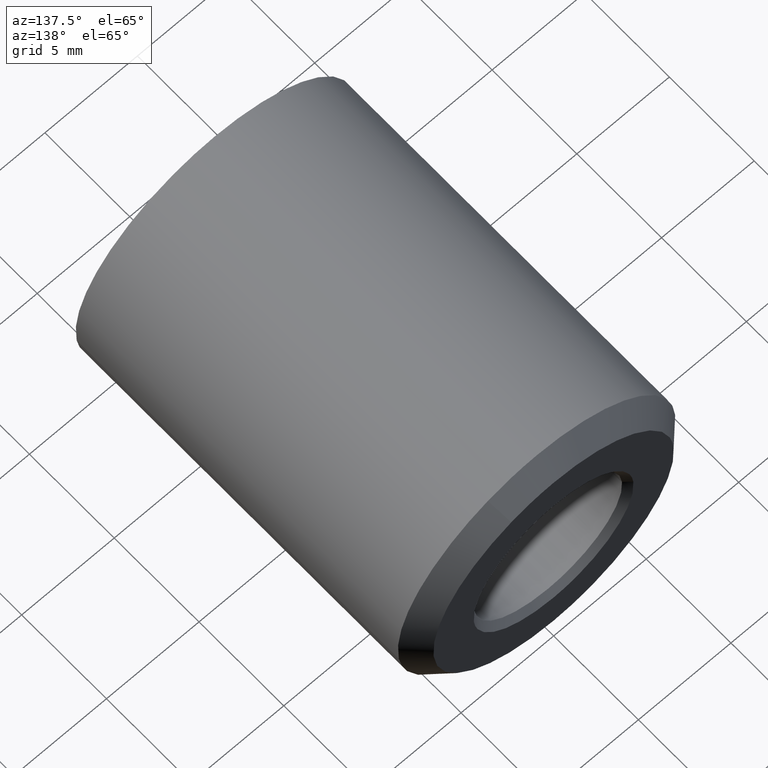
[diagram: clean part render]
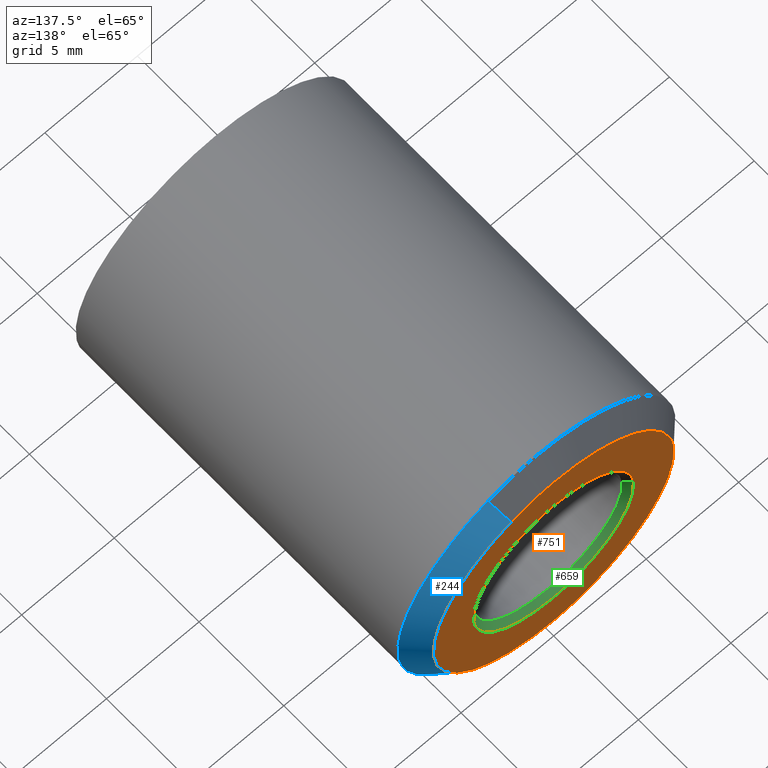
[diagram: same view with three faces highlighted in distinct colors, each labeled with its STEP entity id]
A machine part, auxiliary view with three faces highlighted in distinct colors.
Their STEP definitions:

[orange] entity #751 — the highlighted face is a freeform B-spline surface patch.
#79=CARTESIAN_POINT('',(2.285516833559040,19.999999999998650,6.084933262044523));
#80=VERTEX_POINT('',#79);
#86=CARTESIAN_POINT('',(0.0,20.0,6.500000000000000));
#87=VERTEX_POINT('',#86);
#88=CARTESIAN_POINT('',(2.285516833559040,19.999999999998646,6.084933262044523));
#89=CARTESIAN_POINT('',(1.180448009448671,20.0,6.500000000000001));
#90=CARTESIAN_POINT('',(0.0,20.0,6.500000000000000));
#98=(BOUNDED_CURVE()B_SPLINE_CURVE(2,(#88,#89,#90),.UNSPECIFIED.,.F.,.U.)B_SPLINE_CURVE_WITH_KNOTS((3,3),(0.440284170898217,0.500000000000000),.UNSPECIFIED.)CURVE()GEOMETRIC_REPRESENTATION_ITEM()RATIONAL_B_SPLINE_CURVE((0.893499554634918,0.930038554401058,1.0))REPRESENTATION_ITEM(''));
#99=EDGE_CURVE('',#80,#87,#98,.T.);
#101=CARTESIAN_POINT('',(-6.487876189743154,19.999999999998099,0.396815506990952));
#102=VERTEX_POINT('',#101);
#103=CARTESIAN_POINT('',(0.0,20.0,6.500000000000000));
#104=CARTESIAN_POINT('',(-6.114589434860092,19.999999999999996,6.500000000000000));
#105=CARTESIAN_POINT('',(-6.487876189743154,19.999999999998103,0.396815506990952));
#113=(BOUNDED_CURVE()B_SPLINE_CURVE(2,(#103,#104,#105),.UNSPECIFIED.,.F.,.U.)B_SPLINE_CURVE_WITH_KNOTS((3,3),(0.500000000000000,0.739332962241210),.UNSPECIFIED.)CURVE()GEOMETRIC_REPRESENTATION_ITEM()RATIONAL_B_SPLINE_CURVE((1.0,0.719603993284054,0.976072041671576))REPRESENTATION_ITEM(''));
#114=EDGE_CURVE('',#87,#102,#113,.T.);
#209=CARTESIAN_POINT('',(0.0,20.0,-6.500000000000000));
#210=VERTEX_POINT('',#209);
#211=CARTESIAN_POINT('',(-6.487876189743154,19.999999999998099,0.396815506990952));
#212=CARTESIAN_POINT('',(-6.500000000000000,20.000000000000004,0.198592961455134));
#213=CARTESIAN_POINT('',(-6.500000000000000,20.0,-1.836910E-016));
#214=CARTESIAN_POINT('',(-6.500000000000000,20.0,-6.500000000000000));
#215=CARTESIAN_POINT('',(0.0,20.0,-6.500000000000000));
#223=(BOUNDED_CURVE()B_SPLINE_CURVE(2,(#211,#212,#213,#214,#215),.UNSPECIFIED.,.F.,.U.)B_SPLINE_CURVE_WITH_KNOTS((3,2,3),(0.739332962241209,0.750000000000000,1.0),.UNSPECIFIED.)CURVE()GEOMETRIC_REPRESENTATION_ITEM()RATIONAL_B_SPLINE_CURVE((0.976072041671575,0.987502787902493,1.0,0.707106781186547,1.0))REPRESENTATION_ITEM(''));
#224=EDGE_CURVE('',#102,#210,#223,.T.);
#226=CARTESIAN_POINT('',(0.0,20.0,-6.500000000000000));
#227=CARTESIAN_POINT('',(6.500000000000000,20.0,-6.500000000000000));
#228=CARTESIAN_POINT('',(6.500000000000000,20.0,-1.836910E-016));
#229=CARTESIAN_POINT('',(6.500000000000001,20.000000000000007,4.501962371992629));
#230=CARTESIAN_POINT('',(2.285516833559040,19.999999999998654,6.084933262044523));
#238=(BOUNDED_CURVE()B_SPLINE_CURVE(2,(#226,#227,#228,#229,#230),.UNSPECIFIED.,.F.,.U.)B_SPLINE_CURVE_WITH_KNOTS((3,2,3),(0.0,0.250000000000000,0.440284170898216),.UNSPECIFIED.)CURVE()GEOMETRIC_REPRESENTATION_ITEM()RATIONAL_B_SPLINE_CURVE((1.0,0.707106781186547,1.0,0.777068226785489,0.893499554634918))REPRESENTATION_ITEM(''));
#239=EDGE_CURVE('',#210,#80,#238,.T.);
#611=CARTESIAN_POINT('',(4.310172092395723,20.000000000001378,-0.339217900389955));
#612=VERTEX_POINT('',#611);
#618=CARTESIAN_POINT('',(0.0,20.0,-4.323500000000000));
#619=VERTEX_POINT('',#618);
#620=CARTESIAN_POINT('',(0.0,20.0,-4.323500000000000));
#621=CARTESIAN_POINT('',(3.996602290664712,20.0,-4.323500000000000));
#622=CARTESIAN_POINT('',(4.310172092395723,20.000000000001378,-0.339217900389955));
#630=(BOUNDED_CURVE()B_SPLINE_CURVE(2,(#620,#621,#622),.UNSPECIFIED.,.F.,.U.)B_SPLINE_CURVE_WITH_KNOTS((3,3),(0.0,0.236331300631931),.UNSPECIFIED.)CURVE()GEOMETRIC_REPRESENTATION_ITEM()RATIONAL_B_SPLINE_CURVE((1.0,0.723120658606176,0.969723356170071))REPRESENTATION_ITEM(''));
#631=EDGE_CURVE('',#619,#612,#630,.T.);
#633=CARTESIAN_POINT('',(-4.310172092395723,20.000000000001378,0.339217900389954));
#634=VERTEX_POINT('',#633);
#635=CARTESIAN_POINT('',(-4.310172092395723,20.000000000001378,0.339217900389955));
#636=CARTESIAN_POINT('',(-4.323500000000000,19.999999999999996,0.169870777658216));
#637=CARTESIAN_POINT('',(-4.323500000000000,20.0,-1.836910E-016));
#638=CARTESIAN_POINT('',(-4.323500000000001,19.999999999999996,-4.323500000000001));
#639=CARTESIAN_POINT('',(0.0,20.0,-4.323500000000000));
#647=(BOUNDED_CURVE()B_SPLINE_CURVE(2,(#635,#636,#637,#638,#639),.UNSPECIFIED.,.F.,.U.)B_SPLINE_CURVE_WITH_KNOTS((3,2,3),(0.736331300631931,0.750000000000000,1.0),.UNSPECIFIED.)CURVE()GEOMETRIC_REPRESENTATION_ITEM()RATIONAL_B_SPLINE_CURVE((0.969723356170071,0.983986122580372,1.0,0.707106781186548,1.0))REPRESENTATION_ITEM(''));
#648=EDGE_CURVE('',#634,#619,#647,.T.);
#682=CARTESIAN_POINT('',(0.0,20.0,4.323500000000000));
#683=VERTEX_POINT('',#682);
#684=CARTESIAN_POINT('',(0.0,20.0,4.323500000000000));
#685=CARTESIAN_POINT('',(-3.996602290664713,20.000000000000004,4.323499999999999));
#686=CARTESIAN_POINT('',(-4.310172092395723,20.000000000001375,0.339217900389955));
#694=(BOUNDED_CURVE()B_SPLINE_CURVE(2,(#684,#685,#686),.UNSPECIFIED.,.F.,.U.)B_SPLINE_CURVE_WITH_KNOTS((3,3),(0.500000000000000,0.736331300631931),.UNSPECIFIED.)CURVE()GEOMETRIC_REPRESENTATION_ITEM()RATIONAL_B_SPLINE_CURVE((1.0,0.723120658606176,0.969723356170071))REPRESENTATION_ITEM(''));
#695=EDGE_CURVE('',#683,#634,#694,.T.);
#697=CARTESIAN_POINT('',(4.310172092395723,20.000000000001378,-0.339217900389955));
#698=CARTESIAN_POINT('',(4.323500000000000,19.999999999999996,-0.169870777658217));
#699=CARTESIAN_POINT('',(4.323500000000000,20.0,-1.836910E-016));
#700=CARTESIAN_POINT('',(4.323500000000001,19.999999999999996,4.323500000000001));
#701=CARTESIAN_POINT('',(0.0,20.0,4.323500000000000));
#709=(BOUNDED_CURVE()B_SPLINE_CURVE(2,(#697,#698,#699,#700,#701),.UNSPECIFIED.,.F.,.U.)B_SPLINE_CURVE_WITH_KNOTS((3,2,3),(0.236331300631931,0.250000000000000,0.500000000000000),.UNSPECIFIED.)CURVE()GEOMETRIC_REPRESENTATION_ITEM()RATIONAL_B_SPLINE_CURVE((0.969723356170071,0.983986122580372,1.0,0.707106781186548,1.0))REPRESENTATION_ITEM(''));
#710=EDGE_CURVE('',#612,#683,#709,.T.);
#734=CARTESIAN_POINT('',(-7.149191782424743,20.0,-7.149349974803477));
#735=CARTESIAN_POINT('',(-7.149191782424743,20.0,7.149350323490650));
#736=CARTESIAN_POINT('',(7.149226883600052,20.0,-7.149349974803477));
#737=CARTESIAN_POINT('',(7.149226883600052,20.0,7.149350323490650));
#738=B_SPLINE_SURFACE_WITH_KNOTS('',1,1,((#734,#736),(#735,#737)),.UNSPECIFIED.,.F.,.F.,.U.,(2,2),(2,2),(0.0,14.298700298294129),(0.0,14.298418666024791),.UNSPECIFIED.);
#739=ORIENTED_EDGE('',*,*,#224,.F.);
#740=ORIENTED_EDGE('',*,*,#114,.F.);
#741=ORIENTED_EDGE('',*,*,#99,.F.);
#742=ORIENTED_EDGE('',*,*,#239,.F.);
#743=EDGE_LOOP('',(#739,#740,#741,#742));
#744=FACE_OUTER_BOUND('',#743,.T.);
#745=ORIENTED_EDGE('',*,*,#695,.T.);
#746=ORIENTED_EDGE('',*,*,#648,.T.);
#747=ORIENTED_EDGE('',*,*,#631,.T.);
#748=ORIENTED_EDGE('',*,*,#710,.T.);
#749=EDGE_LOOP('',(#745,#746,#747,#748));
#750=FACE_BOUND('',#749,.T.);
#751=ADVANCED_FACE('',(#744,#750),#738,.T.);

[blue] entity #244 — the highlighted face is a freeform B-spline surface patch.
#62=CARTESIAN_POINT('',(2.637134807943279,18.999999999999371,7.021076840823168));
#63=VERTEX_POINT('',#62);
#79=CARTESIAN_POINT('',(2.285516833559040,19.999999999998650,6.084933262044523));
#80=VERTEX_POINT('',#79);
#81=CARTESIAN_POINT('',(2.285516833559040,19.999999999998650,6.084933262044523));
#82=CARTESIAN_POINT('',(2.637134807943279,18.999999999999371,7.021076840823168));
#83=QUASI_UNIFORM_CURVE('',1,(#81,#82),.UNSPECIFIED.,.F.,.U.);
#84=EDGE_CURVE('',#80,#63,#83,.T.);
#101=CARTESIAN_POINT('',(-6.487876189743154,19.999999999998099,0.396815506990952));
#102=VERTEX_POINT('',#101);
#116=CARTESIAN_POINT('',(-7.486011170110235,19.000000004526569,0.457860997528976));
#117=VERTEX_POINT('',#116);
#118=CARTESIAN_POINT('',(-6.487876189743154,19.999999999998099,0.396815506990952));
#119=CARTESIAN_POINT('',(-7.486011170110235,19.000000004526569,0.457860997528976));
#120=QUASI_UNIFORM_CURVE('',1,(#118,#119),.UNSPECIFIED.,.F.,.U.);
#121=EDGE_CURVE('',#102,#117,#120,.T.);
#139=CARTESIAN_POINT('',(-6.462922819781583,20.024999999999999,0.395289293488199));
#140=CARTESIAN_POINT('',(-6.858212113269783,20.025000000000009,-6.067633526293386));
#141=CARTESIAN_POINT('',(-0.395289293488199,20.024999999999999,-6.462922819781583));
#142=CARTESIAN_POINT('',(6.067633526293384,20.025000000000009,-6.858212113269783));
#143=CARTESIAN_POINT('',(6.462922819781583,20.024999999999999,-0.395289293488199));
#144=CARTESIAN_POINT('',(6.754961018078985,20.024999999999999,4.379493042174844));
#145=CARTESIAN_POINT('',(2.276726384185428,20.025000000000006,6.061529672578851));
#146=CARTESIAN_POINT('',(-7.511588192373565,18.974374999999998,0.459428415337008));
#147=CARTESIAN_POINT('',(-7.971016607710572,18.974375000000002,-7.052159777036557));
#148=CARTESIAN_POINT('',(-0.459428415337008,18.974374999999998,-7.511588192373565));
#149=CARTESIAN_POINT('',(7.052159777036557,18.974375000000002,-7.971016607710572));
#150=CARTESIAN_POINT('',(7.511588192373565,18.974374999999998,-0.459428415337009));
#151=CARTESIAN_POINT('',(7.851012125356095,18.974375000000002,5.090103834056696));
#152=CARTESIAN_POINT('',(2.646145018530576,18.974374999999991,7.045065520031083));
#160=(BOUNDED_SURFACE()B_SPLINE_SURFACE(2,1,((#139,#146),(#140,#147),(#141,#148),(#142,#149),(#143,#150),(#144,#151),(#145,#152)),.UNSPECIFIED.,.F.,.F.,.U.)B_SPLINE_SURFACE_WITH_KNOTS((3,2,2,3),(2,2),(0.0,12.468863761336101,24.937727522672201,34.912818531741081),(0.0,1.0),.UNSPECIFIED.)GEOMETRIC_REPRESENTATION_ITEM()RATIONAL_B_SPLINE_SURFACE(((1.0,1.0),(0.707106781186548,0.707106781186548),(1.0,1.0),(0.707106781186548,0.707106781186548),(1.0,1.0),(0.765685424949238,0.765685424949238),(0.906274169979695,0.906274169979695)))REPRESENTATION_ITEM('')SURFACE());
#161=CARTESIAN_POINT('',(7.447571630219821,19.0,-0.885255224634380));
#162=VERTEX_POINT('',#161);
#163=CARTESIAN_POINT('',(7.447571630219821,19.000000000000004,-0.885255224634380));
#164=CARTESIAN_POINT('',(7.500000000000001,19.0,-0.444180121628244));
#165=CARTESIAN_POINT('',(7.500000000000000,19.0,-1.836910E-016));
#166=CARTESIAN_POINT('',(7.500000000000000,19.0,5.194571967698237));
#167=CARTESIAN_POINT('',(2.637134807943279,18.999999999999361,7.021076840823170));
#175=(BOUNDED_CURVE()B_SPLINE_CURVE(2,(#163,#164,#165,#166,#167),.UNSPECIFIED.,.F.,.U.)B_SPLINE_CURVE_WITH_KNOTS((3,2,3),(0.229562508355085,0.250000000000000,0.440284170898627),.UNSPECIFIED.)CURVE()GEOMETRIC_REPRESENTATION_ITEM()RATIONAL_B_SPLINE_CURVE((0.956026822474627,0.976055989150591,1.0,0.777068226785008,0.893499554635421))REPRESENTATION_ITEM(''));
#176=EDGE_CURVE('',#162,#63,#175,.T.);
#177=ORIENTED_EDGE('',*,*,#176,.F.);
#178=CARTESIAN_POINT('',(0.0,19.0,-7.500000000000000));
#179=VERTEX_POINT('',#178);
#180=CARTESIAN_POINT('',(0.0,19.0,-7.500000000000000));
#181=CARTESIAN_POINT('',(6.661310327508277,19.0,-7.500000000000000));
#182=CARTESIAN_POINT('',(7.447571630219821,19.000000000000004,-0.885255224634380));
#190=(BOUNDED_CURVE()B_SPLINE_CURVE(2,(#180,#181,#182),.UNSPECIFIED.,.F.,.U.)B_SPLINE_CURVE_WITH_KNOTS((3,3),(0.0,0.229562508355085),.UNSPECIFIED.)CURVE()GEOMETRIC_REPRESENTATION_ITEM()RATIONAL_B_SPLINE_CURVE((1.0,0.731050792035956,0.956026822474627))REPRESENTATION_ITEM(''));
#191=EDGE_CURVE('',#179,#162,#190,.T.);
#192=ORIENTED_EDGE('',*,*,#191,.F.);
#193=CARTESIAN_POINT('',(-7.486011170110235,19.000000004526569,0.457860997528976));
#194=CARTESIAN_POINT('',(-7.500000000000001,19.0,0.229144196112307));
#195=CARTESIAN_POINT('',(-7.500000000000000,19.0,-1.836910E-016));
#196=CARTESIAN_POINT('',(-7.500000000000000,18.999999999999996,-7.500000000000000));
#197=CARTESIAN_POINT('',(0.0,19.0,-7.500000000000000));
#205=(BOUNDED_CURVE()B_SPLINE_CURVE(2,(#193,#194,#195,#196,#197),.UNSPECIFIED.,.F.,.U.)B_SPLINE_CURVE_WITH_KNOTS((3,2,3),(0.739333032512299,0.750000000000000,1.0),.UNSPECIFIED.)CURVE()GEOMETRIC_REPRESENTATION_ITEM()RATIONAL_B_SPLINE_CURVE((0.976072192275943,0.987502870230195,1.0,0.707106781186547,1.0))REPRESENTATION_ITEM(''));
#206=EDGE_CURVE('',#117,#179,#205,.T.);
#207=ORIENTED_EDGE('',*,*,#206,.F.);
#208=ORIENTED_EDGE('',*,*,#121,.F.);
#209=CARTESIAN_POINT('',(0.0,20.0,-6.500000000000000));
#210=VERTEX_POINT('',#209);
#211=CARTESIAN_POINT('',(-6.487876189743154,19.999999999998099,0.396815506990952));
#212=CARTESIAN_POINT('',(-6.500000000000000,20.000000000000004,0.198592961455134));
#213=CARTESIAN_POINT('',(-6.500000000000000,20.0,-1.836910E-016));
#214=CARTESIAN_POINT('',(-6.500000000000000,20.0,-6.500000000000000));
#215=CARTESIAN_POINT('',(0.0,20.0,-6.500000000000000));
#223=(BOUNDED_CURVE()B_SPLINE_CURVE(2,(#211,#212,#213,#214,#215),.UNSPECIFIED.,.F.,.U.)B_SPLINE_CURVE_WITH_KNOTS((3,2,3),(0.739332962241209,0.750000000000000,1.0),.UNSPECIFIED.)CURVE()GEOMETRIC_REPRESENTATION_ITEM()RATIONAL_B_SPLINE_CURVE((0.976072041671575,0.987502787902493,1.0,0.707106781186547,1.0))REPRESENTATION_ITEM(''));
#224=EDGE_CURVE('',#102,#210,#223,.T.);
#225=ORIENTED_EDGE('',*,*,#224,.T.);
#226=CARTESIAN_POINT('',(0.0,20.0,-6.500000000000000));
#227=CARTESIAN_POINT('',(6.500000000000000,20.0,-6.500000000000000));
#228=CARTESIAN_POINT('',(6.500000000000000,20.0,-1.836910E-016));
#229=CARTESIAN_POINT('',(6.500000000000001,20.000000000000007,4.501962371992629));
#230=CARTESIAN_POINT('',(2.285516833559040,19.999999999998654,6.084933262044523));
#238=(BOUNDED_CURVE()B_SPLINE_CURVE(2,(#226,#227,#228,#229,#230),.UNSPECIFIED.,.F.,.U.)B_SPLINE_CURVE_WITH_KNOTS((3,2,3),(0.0,0.250000000000000,0.440284170898216),.UNSPECIFIED.)CURVE()GEOMETRIC_REPRESENTATION_ITEM()RATIONAL_B_SPLINE_CURVE((1.0,0.707106781186547,1.0,0.777068226785489,0.893499554634918))REPRESENTATION_ITEM(''));
#239=EDGE_CURVE('',#210,#80,#238,.T.);
#240=ORIENTED_EDGE('',*,*,#239,.T.);
#241=ORIENTED_EDGE('',*,*,#84,.T.);
#242=EDGE_LOOP('',(#177,#192,#207,#208,#225,#240,#241));
#243=FACE_OUTER_BOUND('',#242,.T.);
#244=ADVANCED_FACE('',(#243),#160,.T.);

[green] entity #659 — the highlighted face is a freeform B-spline surface patch.
#448=CARTESIAN_POINT('',(-3.992539218268482,19.676500000000001,0.244193756242729));
#449=VERTEX_POINT('',#448);
#455=CARTESIAN_POINT('',(-3.987669334933437,19.676500000002310,0.313836382929125));
#456=VERTEX_POINT('',#455);
#457=CARTESIAN_POINT('',(-3.987669334933436,19.676500000002317,0.313836382929124));
#458=CARTESIAN_POINT('',(-3.990408175146816,19.676500000000004,0.279036118412677));
#459=CARTESIAN_POINT('',(-3.992539218268482,19.676499999999997,0.244193756242729));
#467=(BOUNDED_CURVE()B_SPLINE_CURVE(2,(#457,#458,#459),.UNSPECIFIED.,.F.,.U.)B_SPLINE_CURVE_WITH_KNOTS((3,3),(0.736331300631257,0.739332996979756),.UNSPECIFIED.)CURVE()GEOMETRIC_REPRESENTATION_ITEM()RATIONAL_B_SPLINE_CURVE((0.969723356168664,0.972855511811289,0.976072116122905))REPRESENTATION_ITEM(''));
#468=EDGE_CURVE('',#456,#449,#467,.T.);
#508=CARTESIAN_POINT('',(3.987669334933435,19.676500000002310,-0.313836382929126));
#509=VERTEX_POINT('',#508);
#525=CARTESIAN_POINT('',(0.0,19.676500000000001,-4.0));
#526=VERTEX_POINT('',#525);
#527=CARTESIAN_POINT('',(0.0,19.676500000000001,-4.0));
#528=CARTESIAN_POINT('',(3.697561966600156,19.676500000000008,-4.0));
#529=CARTESIAN_POINT('',(3.987669334933435,19.676500000002314,-0.313836382929126));
#537=(BOUNDED_CURVE()B_SPLINE_CURVE(2,(#527,#528,#529),.UNSPECIFIED.,.F.,.U.)B_SPLINE_CURVE_WITH_KNOTS((3,3),(0.0,0.236331300631257),.UNSPECIFIED.)CURVE()GEOMETRIC_REPRESENTATION_ITEM()RATIONAL_B_SPLINE_CURVE((1.0,0.723120658606966,0.969723356168664))REPRESENTATION_ITEM(''));
#538=EDGE_CURVE('',#526,#509,#537,.T.);
#540=CARTESIAN_POINT('',(-3.992539218268482,19.676499999999997,0.244193756242729));
#541=CARTESIAN_POINT('',(-4.000000000000001,19.676500000000001,0.122210650170782));
#542=CARTESIAN_POINT('',(-4.0,19.676500000000001,-1.836910E-016));
#543=CARTESIAN_POINT('',(-4.000000000000000,19.676499999999997,-4.000000000000000));
#544=CARTESIAN_POINT('',(0.0,19.676500000000001,-4.0));
#552=(BOUNDED_CURVE()B_SPLINE_CURVE(2,(#540,#541,#542,#543,#544),.UNSPECIFIED.,.F.,.U.)B_SPLINE_CURVE_WITH_KNOTS((3,2,3),(0.739332996979755,0.750000000000000,1.0),.UNSPECIFIED.)CURVE()GEOMETRIC_REPRESENTATION_ITEM()RATIONAL_B_SPLINE_CURVE((0.976072116122902,0.987502828601230,1.0,0.707106781186548,1.0))REPRESENTATION_ITEM(''));
#553=EDGE_CURVE('',#449,#526,#552,.T.);
#592=CARTESIAN_POINT('',(3.979606765995942,19.668412499999999,-0.313201844974683));
#593=CARTESIAN_POINT('',(3.666404921021259,19.668412500000002,-4.292808610970625));
#594=CARTESIAN_POINT('',(-0.313201844974683,19.668412499999999,-3.979606765995942));
#595=CARTESIAN_POINT('',(-4.292808610970625,19.668412500000002,-3.666404921021259));
#596=CARTESIAN_POINT('',(-3.979606765995942,19.668412499999999,0.313201844974683));
#597=CARTESIAN_POINT('',(4.318436225555163,20.008289687500000,-0.339868301764457));
#598=CARTESIAN_POINT('',(3.978567923790707,20.008289687500003,-4.658304527319621));
#599=CARTESIAN_POINT('',(-0.339868301764457,20.008289687500000,-4.318436225555163));
#600=CARTESIAN_POINT('',(-4.658304527319621,20.008289687500003,-3.978567923790707));
#601=CARTESIAN_POINT('',(-4.318436225555163,20.008289687500000,0.339868301764457));
#609=(BOUNDED_SURFACE()B_SPLINE_SURFACE(2,1,((#592,#597),(#593,#598),(#594,#599),(#595,#600),(#596,#601)),.UNSPECIFIED.,.F.,.F.,.U.)B_SPLINE_SURFACE_WITH_KNOTS((3,2,3),(2,2),(0.0,7.177144151641651,14.354288303283299),(0.0,0.480658928103731),.UNSPECIFIED.)GEOMETRIC_REPRESENTATION_ITEM()RATIONAL_B_SPLINE_SURFACE(((1.0,1.0),(0.707106781186548,0.707106781186548),(1.0,1.0),(0.707106781186548,0.707106781186548),(1.0,1.0)))REPRESENTATION_ITEM('')SURFACE());
#610=ORIENTED_EDGE('',*,*,#538,.T.);
#611=CARTESIAN_POINT('',(4.310172092395723,20.000000000001378,-0.339217900389955));
#612=VERTEX_POINT('',#611);
#613=CARTESIAN_POINT('',(3.987669334933435,19.676500000002310,-0.313836382929126));
#614=CARTESIAN_POINT('',(4.310172092395723,20.000000000001378,-0.339217900389955));
#615=QUASI_UNIFORM_CURVE('',1,(#613,#614),.UNSPECIFIED.,.F.,.U.);
#616=EDGE_CURVE('',#509,#612,#615,.T.);
#617=ORIENTED_EDGE('',*,*,#616,.T.);
#618=CARTESIAN_POINT('',(0.0,20.0,-4.323500000000000));
#619=VERTEX_POINT('',#618);
#620=CARTESIAN_POINT('',(0.0,20.0,-4.323500000000000));
#621=CARTESIAN_POINT('',(3.996602290664712,20.0,-4.323500000000000));
#622=CARTESIAN_POINT('',(4.310172092395723,20.000000000001378,-0.339217900389955));
#630=(BOUNDED_CURVE()B_SPLINE_CURVE(2,(#620,#621,#622),.UNSPECIFIED.,.F.,.U.)B_SPLINE_CURVE_WITH_KNOTS((3,3),(0.0,0.236331300631931),.UNSPECIFIED.)CURVE()GEOMETRIC_REPRESENTATION_ITEM()RATIONAL_B_SPLINE_CURVE((1.0,0.723120658606176,0.969723356170071))REPRESENTATION_ITEM(''));
#631=EDGE_CURVE('',#619,#612,#630,.T.);
#632=ORIENTED_EDGE('',*,*,#631,.F.);
#633=CARTESIAN_POINT('',(-4.310172092395723,20.000000000001378,0.339217900389954));
#634=VERTEX_POINT('',#633);
#635=CARTESIAN_POINT('',(-4.310172092395723,20.000000000001378,0.339217900389955));
#636=CARTESIAN_POINT('',(-4.323500000000000,19.999999999999996,0.169870777658216));
#637=CARTESIAN_POINT('',(-4.323500000000000,20.0,-1.836910E-016));
#638=CARTESIAN_POINT('',(-4.323500000000001,19.999999999999996,-4.323500000000001));
#639=CARTESIAN_POINT('',(0.0,20.0,-4.323500000000000));
#647=(BOUNDED_CURVE()B_SPLINE_CURVE(2,(#635,#636,#637,#638,#639),.UNSPECIFIED.,.F.,.U.)B_SPLINE_CURVE_WITH_KNOTS((3,2,3),(0.736331300631931,0.750000000000000,1.0),.UNSPECIFIED.)CURVE()GEOMETRIC_REPRESENTATION_ITEM()RATIONAL_B_SPLINE_CURVE((0.969723356170071,0.983986122580372,1.0,0.707106781186548,1.0))REPRESENTATION_ITEM(''));
#648=EDGE_CURVE('',#634,#619,#647,.T.);
#649=ORIENTED_EDGE('',*,*,#648,.F.);
#650=CARTESIAN_POINT('',(-3.987669334933437,19.676500000002310,0.313836382929125));
#651=CARTESIAN_POINT('',(-4.310172092395723,20.000000000001378,0.339217900389954));
#652=QUASI_UNIFORM_CURVE('',1,(#650,#651),.UNSPECIFIED.,.F.,.U.);
#653=EDGE_CURVE('',#456,#634,#652,.T.);
#654=ORIENTED_EDGE('',*,*,#653,.F.);
#655=ORIENTED_EDGE('',*,*,#468,.T.);
#656=ORIENTED_EDGE('',*,*,#553,.T.);
#657=EDGE_LOOP('',(#610,#617,#632,#649,#654,#655,#656));
#658=FACE_OUTER_BOUND('',#657,.T.);
#659=ADVANCED_FACE('',(#658),#609,.F.);